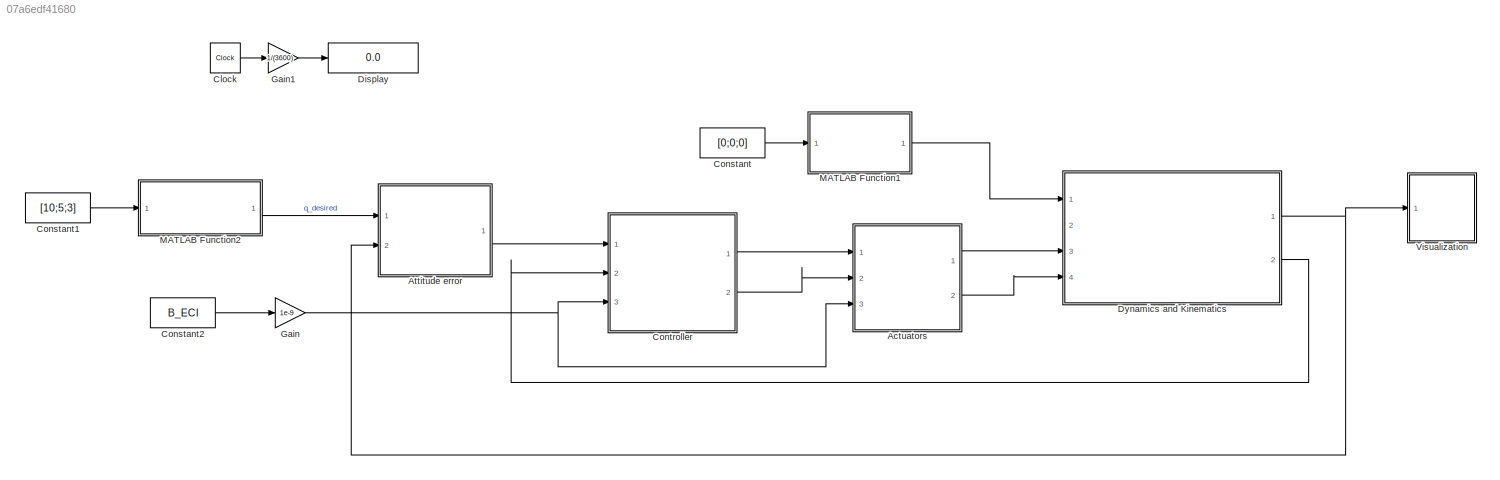
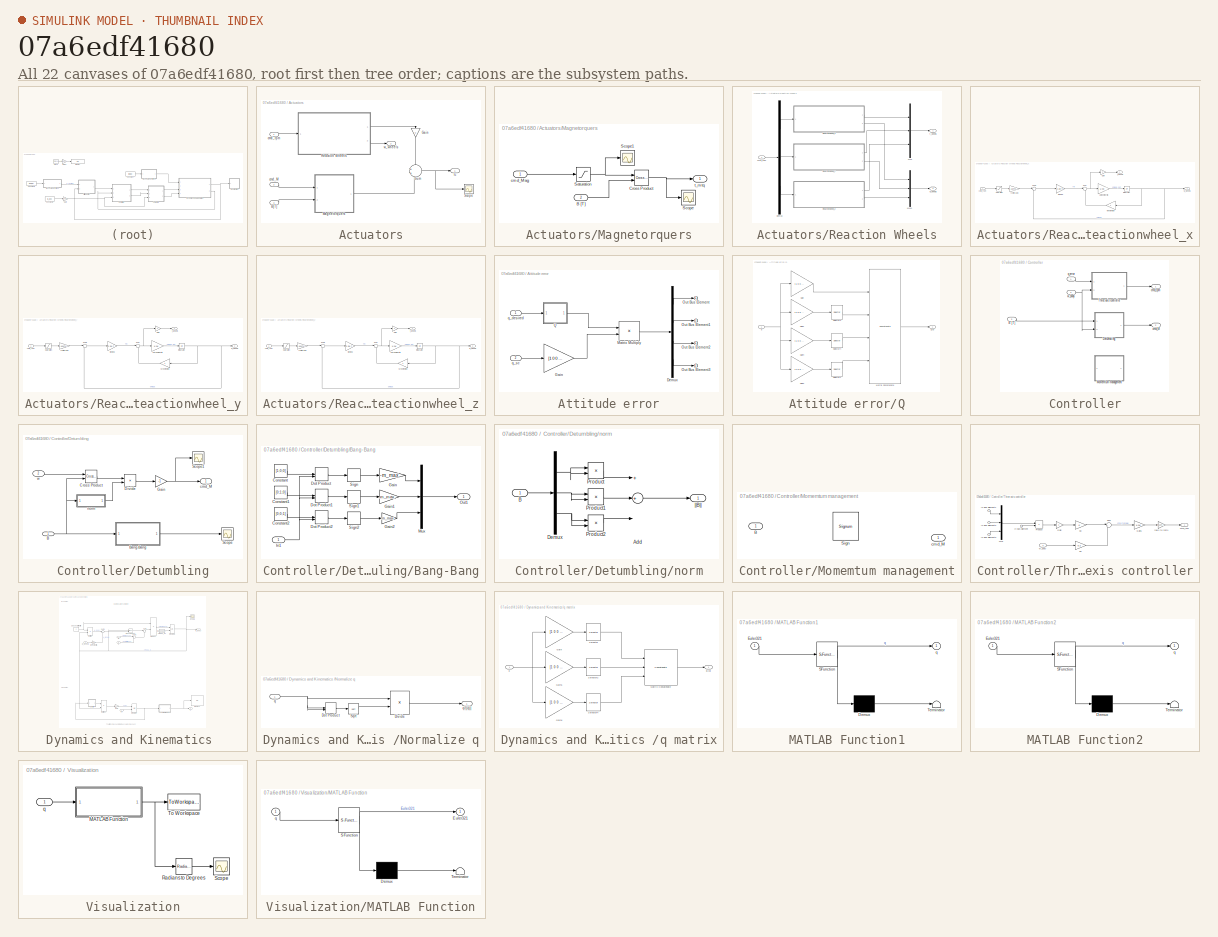
[diagram: thumbnail index - all 22 canvases of the model, root first then tree order]
MODEL slx_07a6edf41680
KIND model
CONFIG AbsTol = auto
CONFIG EnableMultiTasking = off
CONFIG FixedStep = auto
CONFIG MaxStep = auto
CONFIG MinStep = auto
CONFIG RelTol = 1e-3
CONFIG SampleTimeConstraint = Unconstrained
CONFIG Solver = VariableStepAuto
CONFIG SolverName = VariableStepAuto
CONFIG StartTime = 0.0
CONFIG StopTime = 50000
BLOCK [SubSystem] Actuators
  Ports = [3, 2]
  RequestExecContextInheritance = off
BLOCK [Inport] Actuators/B[T]
  IconDisplay = Port number
  Port = 3
BLOCK [Gain] Actuators/Gain
  Gain = 0
  OutDataTypeStr = Inherit: Inherit via internal rule
  ParamDataTypeStr = Inherit: Inherit via internal rule
  SaturateOnIntegerOverflow = off
BLOCK [SubSystem] Actuators/Magnetorquers
  Ports = [2, 1]
  RequestExecContextInheritance = off
BLOCK [Inport] Actuators/Magnetorquers/B [T]
  IconDisplay = Port number
  Port = 2
BLOCK [Reference] Actuators/Magnetorquers/Cross Product  REF=vrlib/Utilities/Cross Product
  Ports = [2, 1]
  SourceBlock = vrlib/Utilities/Cross Product
  SourceProductBaseCode = SL
  SourceProductName = Simulink
  SourceType = Cross Product
BLOCK [Saturate] Actuators/Magnetorquers/Saturation
  InputPortMap = u0
  LowerLimit = -m_max-10
  Ports = [1, 1]
  UpperLimit = m_max+10
BLOCK [Scope] Actuators/Magnetorquers/Scope
  Floating = off
  NumInputPorts = 1
  Ports = [1]
  ScopeSpecificationString = Simulink.scopes.TimeScopeBlockCfg('CurrentConfiguration', extmgr.ConfigurationSet(extmgr.Configuration('Core','General UI',true),extmgr.Configuration('Core','Source UI',true),extmgr.Configuration('Sources','WiredSimulink',true,'DataLoggingVariableName','ScopeData1'),extmgr.Configuration('Visuals','Time Domain',true,'SerializedDisplays',{struct('MinYLimReal','-0.00009','MaxYLimReal','0.00063','YLab...<+1454ch>
BLOCK [Scope] Actuators/Magnetorquers/Scope1
  Floating = off
  NumInputPorts = 1
  Ports = [1]
  ScopeSpecificationString = Simulink.scopes.TimeScopeBlockCfg('CurrentConfiguration', extmgr.ConfigurationSet(extmgr.Configuration('Core','General UI',true),extmgr.Configuration('Core','Source UI',true),extmgr.Configuration('Sources','WiredSimulink',true,'DataLoggingVariableName','ScopeData3'),extmgr.Configuration('Visuals','Time Domain',true,'SerializedDisplays',{struct('MinYLimReal','-12.8','MaxYLimReal','12.8','YLabelReal...<+1427ch>
BLOCK [Inport] Actuators/Magnetorquers/cmd_Mag
  IconDisplay = Port number
BLOCK [Outport] Actuators/Magnetorquers/t_mtq
  IconDisplay = Port number
BLOCK [SubSystem] Actuators/Reaction Wheels
  Ports = [1, 2]
  RequestExecContextInheritance = off
BLOCK [Demux] Actuators/Reaction Wheels/Demux
  DisplayOption = bar
  Outputs = 3
  Ports = [1, 3]
BLOCK [Mux] Actuators/Reaction Wheels/Mux
  DisplayOption = bar
  Inputs = 3
  Ports = [3, 1]
BLOCK [Mux] Actuators/Reaction Wheels/Mux1
  DisplayOption = bar
  Inputs = 3
  Ports = [3, 1]
BLOCK [SubSystem] Actuators/Reaction Wheels/Reactionwheel_x
  Ports = [1, 2]
  RequestExecContextInheritance = off
BLOCK [Gain] Actuators/Reaction Wheels/Reactionwheel_x/1//Wheel inertia
  Gain = 1/Jw
  OutDataTypeStr = Inherit: Inherit via internal rule
  ParamDataTypeStr = Inherit: Inherit via internal rule
  SaturateOnIntegerOverflow = off
BLOCK [Gain] Actuators/Reaction Wheels/Reactionwheel_x/Gain
  Gain = -1
  OutDataTypeStr = Inherit: Inherit via internal rule
  ParamDataTypeStr = Inherit: Inherit via internal rule
  SaturateOnIntegerOverflow = off
BLOCK [Integrator] Actuators/Reaction Wheels/Reactionwheel_x/Integrator
  Ports = [1, 1]
BLOCK [Saturate] Actuators/Reaction Wheels/Reactionwheel_x/Saturation
  InputPortMap = u0
  LowerLimit = -8000
  Ports = [1, 1]
  UpperLimit = 8000
BLOCK [Sum] Actuators/Reaction Wheels/Reactionwheel_x/Sum
  IconShape = round
  InputSameDT = off
  Inputs = |+-
  OutDataTypeStr = Inherit: Inherit via internal rule
  Ports = [2, 1]
  SaturateOnIntegerOverflow = off
BLOCK [Sum] Actuators/Reaction Wheels/Reactionwheel_x/Sum1
  IconShape = round
  InputSameDT = off
  Inputs = |+-
  OutDataTypeStr = Inherit: Inherit via internal rule
  Ports = [2, 1]
  SaturateOnIntegerOverflow = off
BLOCK [Gain] Actuators/Reaction Wheels/Reactionwheel_x/Wheel friction
  Gain = f
  OutDataTypeStr = Inherit: Inherit via internal rule
  ParamDataTypeStr = Inherit: Inherit via internal rule
  SaturateOnIntegerOverflow = off
BLOCK [Inport] Actuators/Reaction Wheels/Reactionwheel_x/cmd_rpm
  IconDisplay = Port number
BLOCK [Gain] Actuators/Reaction Wheels/Reactionwheel_x/rpm to rad//s
  Gain = 0.104719755
  OutDataTypeStr = Inherit: Inherit via internal rule
  ParamDataTypeStr = Inherit: Inherit via internal rule
  SaturateOnIntegerOverflow = off
BLOCK [Outport] Actuators/Reaction Wheels/Reactionwheel_x/t_wheels
  IconDisplay = Port number
BLOCK [Outport] Actuators/Reaction Wheels/Reactionwheel_x/w_wheels
  IconDisplay = Port number
  Port = 2
BLOCK [Gain] Actuators/Reaction Wheels/Reactionwheel_x/winding
  Gain = 2.2e-7
  OutDataTypeStr = Inherit: Inherit via internal rule
  ParamDataTypeStr = Inherit: Inherit via internal rule
  SaturateOnIntegerOverflow = off
BLOCK [SubSystem] Actuators/Reaction Wheels/Reactionwheel_y
  Ports = [1, 2]
  RequestExecContextInheritance = off
BLOCK [Gain] Actuators/Reaction Wheels/Reactionwheel_y/1//Wheel inertia
  Gain = 1/Jw
  OutDataTypeStr = Inherit: Inherit via internal rule
  ParamDataTypeStr = Inherit: Inherit via internal rule
  SaturateOnIntegerOverflow = off
BLOCK [Gain] Actuators/Reaction Wheels/Reactionwheel_y/Gain
  Gain = -1
  OutDataTypeStr = Inherit: Inherit via internal rule
  ParamDataTypeStr = Inherit: Inherit via internal rule
  SaturateOnIntegerOverflow = off
BLOCK [Integrator] Actuators/Reaction Wheels/Reactionwheel_y/Integrator
  Ports = [1, 1]
BLOCK [Saturate] Actuators/Reaction Wheels/Reactionwheel_y/Saturation
  InputPortMap = u0
  LowerLimit = -8000
  Ports = [1, 1]
  UpperLimit = 8000
BLOCK [Sum] Actuators/Reaction Wheels/Reactionwheel_y/Sum
  IconShape = round
  InputSameDT = off
  Inputs = |+-
  OutDataTypeStr = Inherit: Inherit via internal rule
  Ports = [2, 1]
  SaturateOnIntegerOverflow = off
BLOCK [Sum] Actuators/Reaction Wheels/Reactionwheel_y/Sum1
  IconShape = round
  InputSameDT = off
  Inputs = |+-
  OutDataTypeStr = Inherit: Inherit via internal rule
  Ports = [2, 1]
  SaturateOnIntegerOverflow = off
BLOCK [Gain] Actuators/Reaction Wheels/Reactionwheel_y/Wheel friction
  Gain = f
  OutDataTypeStr = Inherit: Inherit via internal rule
  ParamDataTypeStr = Inherit: Inherit via internal rule
  SaturateOnIntegerOverflow = off
BLOCK [Inport] Actuators/Reaction Wheels/Reactionwheel_y/cmd_rpm
  IconDisplay = Port number
BLOCK [Gain] Actuators/Reaction Wheels/Reactionwheel_y/rpm to rad//s
  Gain = 0.104719755
  OutDataTypeStr = Inherit: Inherit via internal rule
  ParamDataTypeStr = Inherit: Inherit via internal rule
  SaturateOnIntegerOverflow = off
BLOCK [Outport] Actuators/Reaction Wheels/Reactionwheel_y/t_wheels
  IconDisplay = Port number
BLOCK [Outport] Actuators/Reaction Wheels/Reactionwheel_y/w_wheels
  IconDisplay = Port number
  Port = 2
BLOCK [Gain] Actuators/Reaction Wheels/Reactionwheel_y/winding
  Gain = 2.2e-7
  OutDataTypeStr = Inherit: Inherit via internal rule
  ParamDataTypeStr = Inherit: Inherit via internal rule
  SaturateOnIntegerOverflow = off
BLOCK [SubSystem] Actuators/Reaction Wheels/Reactionwheel_z
  Ports = [1, 2]
  RequestExecContextInheritance = off
BLOCK [Gain] Actuators/Reaction Wheels/Reactionwheel_z/1//Wheel inertia
  Gain = 1/Jw
  OutDataTypeStr = Inherit: Inherit via internal rule
  ParamDataTypeStr = Inherit: Inherit via internal rule
  SaturateOnIntegerOverflow = off
BLOCK [Gain] Actuators/Reaction Wheels/Reactionwheel_z/Gain
  Gain = -1
  OutDataTypeStr = Inherit: Inherit via internal rule
  ParamDataTypeStr = Inherit: Inherit via internal rule
  SaturateOnIntegerOverflow = off
BLOCK [Integrator] Actuators/Reaction Wheels/Reactionwheel_z/Integrator
  Ports = [1, 1]
BLOCK [Saturate] Actuators/Reaction Wheels/Reactionwheel_z/Saturation
  InputPortMap = u0
  LowerLimit = -8000
  Ports = [1, 1]
  UpperLimit = 8000
BLOCK [Sum] Actuators/Reaction Wheels/Reactionwheel_z/Sum
  IconShape = round
  InputSameDT = off
  Inputs = |+-
  OutDataTypeStr = Inherit: Inherit via internal rule
  Ports = [2, 1]
  SaturateOnIntegerOverflow = off
BLOCK [Sum] Actuators/Reaction Wheels/Reactionwheel_z/Sum1
  IconShape = round
  InputSameDT = off
  Inputs = |+-
  OutDataTypeStr = Inherit: Inherit via internal rule
  Ports = [2, 1]
  SaturateOnIntegerOverflow = off
BLOCK [Gain] Actuators/Reaction Wheels/Reactionwheel_z/Wheel friction
  Gain = f
  OutDataTypeStr = Inherit: Inherit via internal rule
  ParamDataTypeStr = Inherit: Inherit via internal rule
  SaturateOnIntegerOverflow = off
BLOCK [Inport] Actuators/Reaction Wheels/Reactionwheel_z/cmd_rpm
  IconDisplay = Port number
BLOCK [Gain] Actuators/Reaction Wheels/Reactionwheel_z/rpm to rad//s
  Gain = 0.104719755
  OutDataTypeStr = Inherit: Inherit via internal rule
  ParamDataTypeStr = Inherit: Inherit via internal rule
  SaturateOnIntegerOverflow = off
BLOCK [Outport] Actuators/Reaction Wheels/Reactionwheel_z/t_wheels
  IconDisplay = Port number
BLOCK [Outport] Actuators/Reaction Wheels/Reactionwheel_z/w_wheels
  IconDisplay = Port number
  Port = 2
BLOCK [Gain] Actuators/Reaction Wheels/Reactionwheel_z/winding
  Gain = 2.2e-7
  OutDataTypeStr = Inherit: Inherit via internal rule
  ParamDataTypeStr = Inherit: Inherit via internal rule
  SaturateOnIntegerOverflow = off
BLOCK [Inport] Actuators/Reaction Wheels/cmd_rpm
  IconDisplay = Port number
BLOCK [Outport] Actuators/Reaction Wheels/t_wheels
  IconDisplay = Port number
BLOCK [Outport] Actuators/Reaction Wheels/w_wheels
  IconDisplay = Port number
  Port = 2
BLOCK [Scope] Actuators/Scope
  Floating = off
  NumInputPorts = 1
  Ports = [1]
  ScopeSpecificationString = Simulink.scopes.TimeScopeBlockCfg('CurrentConfiguration', extmgr.ConfigurationSet(extmgr.Configuration('Core','General UI',true),extmgr.Configuration('Core','Source UI',true),extmgr.Configuration('Sources','WiredSimulink',true,'DataLoggingVariableName','ScopeData2'),extmgr.Configuration('Visuals','Time Domain',true,'SerializedDisplays',{struct('MinYLimReal','-0.00009','MaxYLimReal','0.00063','YLab...<+1435ch>
BLOCK [Sum] Actuators/Sum
  IconShape = round
  InputSameDT = off
  OutDataTypeStr = Inherit: Inherit via internal rule
  Ports = [2, 1]
  SaturateOnIntegerOverflow = off
BLOCK [Inport] Actuators/cmd_M
  IconDisplay = Port number
  Port = 2
BLOCK [Inport] Actuators/cmd_rpm
  IconDisplay = Port number
BLOCK [Outport] Actuators/tc
  IconDisplay = Port number
  VectorParamsAs1DForOutWhenUnconnected = on
BLOCK [Outport] Actuators/w_wheels
  IconDisplay = Port number
  Port = 2
  VectorParamsAs1DForOutWhenUnconnected = on
BLOCK [SubSystem] Attitude error
  Ports = [2, 1]
  RequestExecContextInheritance = off
BLOCK [Demux] Attitude error/Demux
  DisplayOption = bar
  Ports = [1, 4]
BLOCK [Gain] Attitude error/Gain
  Gain = [1 0 0 0;0 -1 0 0;0 0 -1 0;0 0 0 -1]
  Multiplication = Matrix(K*u)
  OutDataTypeStr = Inherit: Inherit via internal rule
  ParamDataTypeStr = Inherit: Inherit via internal rule
  SaturateOnIntegerOverflow = off
BLOCK [Product] Attitude error/Matrix Multiply
  InputSameDT = off
  Multiplication = Matrix(*)
  OutDataTypeStr = Inherit: Inherit via internal rule
  Ports = [2, 1]
  RndMeth = Floor
  SaturateOnIntegerOverflow = off
BLOCK [Outport] Attitude error/Out Bus Element
  IconDisplay = Port number
BLOCK [Outport] Attitude error/Out Bus Element1
  IconDisplay = Port number
BLOCK [Outport] Attitude error/Out Bus Element2
  IconDisplay = Port number
BLOCK [Outport] Attitude error/Out Bus Element3
  IconDisplay = Port number
BLOCK [SubSystem] Attitude error/Q
  Ports = [1, 1]
  RequestExecContextInheritance = off
BLOCK [Gain] Attitude error/Q/Gain
  Gain = [1 0 0 0;0 1 0 0;0 0 1 0;0 0 0 1]
  Multiplication = Matrix(K*u)
  OutDataTypeStr = Inherit: Inherit via internal rule
  ParamDataTypeStr = Inherit: Inherit via internal rule
  SaturateOnIntegerOverflow = off
BLOCK [Gain] Attitude error/Q/Gain1
  Gain = [1 0 0 0;0 -1 0 0;0 0 -1 0;0 0 0 1]
  Multiplication = Matrix(K*u)
  OutDataTypeStr = Inherit: Inherit via internal rule
  ParamDataTypeStr = Inherit: Inherit via internal rule
  SaturateOnIntegerOverflow = off
BLOCK [Gain] Attitude error/Q/Gain2
  Gain = [1 0 0 0;0 -1 0 0;0 0 1 0;0 0 0 -1]
  Multiplication = Matrix(K*u)
  OutDataTypeStr = Inherit: Inherit via internal rule
  ParamDataTypeStr = Inherit: Inherit via internal rule
  SaturateOnIntegerOverflow = off
BLOCK [Gain] Attitude error/Q/Gain4
  Gain = [1 0 0 0;0 1 0 0;0 0 -1 0;0 0 0 -1]
  Multiplication = Matrix(K*u)
  OutDataTypeStr = Inherit: Inherit via internal rule
  ParamDataTypeStr = Inherit: Inherit via internal rule
  SaturateOnIntegerOverflow = off
BLOCK [Concatenate] Attitude error/Q/Matrix Concatenate
  ConcatenateDimension = 2
  Mode = Multidimensional array
  NumInputs = 4
  Ports = [4, 1]
BLOCK [Outport] Attitude error/Q/Q(q)
  IconDisplay = Port number
BLOCK [Selector] Attitude error/Q/Selector1
  IndexOptions = Index vector (dialog)
  Indices = [4 3 2 1]
  InputPortWidth = 4
  OutputSizes = 1
  Ports = [1, 1]
BLOCK [Selector] Attitude error/Q/Selector2
  IndexOptions = Index vector (dialog)
  Indices = [2 1 4 3]
  InputPortWidth = 4
  OutputSizes = 1
  Ports = [1, 1]
BLOCK [Selector] Attitude error/Q/Selector4
  IndexOptions = Index vector (dialog)
  Indices = [3 4 1 2]
  InputPortWidth = 4
  OutputSizes = 1
  Ports = [1, 1]
BLOCK [Inport] Attitude error/Q/q
  IconDisplay = Port number
BLOCK [Inport] Attitude error/q_desired
  IconDisplay = Port number
BLOCK [Inport] Attitude error/q_sc
  IconDisplay = Port number
  Port = 2
BLOCK [Clock] Clock
BLOCK [Constant] Constant
  Value = [0;0;0]
BLOCK [Constant] Constant1
  Value = [10;5;3]
BLOCK [Constant] Constant2
  Value = B_ECI
BLOCK [SubSystem] Controller
  Ports = [3, 2]
  RequestExecContextInheritance = off
BLOCK [Inport] Controller/B [T]
  IconDisplay = Port number
  Port = 3
BLOCK [SubSystem] Controller/Detumbling
  Ports = [2, 1]
  RequestExecContextInheritance = off
BLOCK [Inport] Controller/Detumbling/B
  IconDisplay = Port number
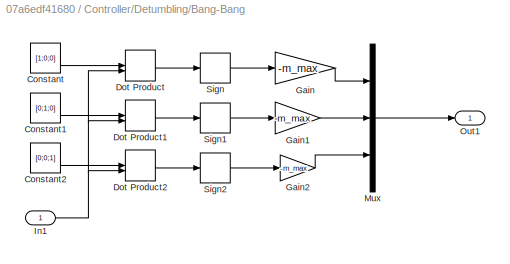
BLOCK [SubSystem] Controller/Detumbling/Bang-Bang
  Ports = [1, 1]
  RequestExecContextInheritance = off
BLOCK [Constant] Controller/Detumbling/Bang-Bang/Constant
  Value = [1;0;0]
BLOCK [Constant] Controller/Detumbling/Bang-Bang/Constant1
  Value = [0;1;0]
BLOCK [Constant] Controller/Detumbling/Bang-Bang/Constant2
  Value = [0;0;1]
BLOCK [DotProduct] Controller/Detumbling/Bang-Bang/Dot Product
  OutDataTypeStr = Inherit: Inherit via internal rule
BLOCK [DotProduct] Controller/Detumbling/Bang-Bang/Dot Product1
  OutDataTypeStr = Inherit: Inherit via internal rule
BLOCK [DotProduct] Controller/Detumbling/Bang-Bang/Dot Product2
  OutDataTypeStr = Inherit: Inherit via internal rule
BLOCK [Gain] Controller/Detumbling/Bang-Bang/Gain
  Gain = -m_max
  OutDataTypeStr = Inherit: Inherit via internal rule
  ParamDataTypeStr = Inherit: Inherit via internal rule
  SaturateOnIntegerOverflow = off
BLOCK [Gain] Controller/Detumbling/Bang-Bang/Gain1
  Gain = -m_max
  OutDataTypeStr = Inherit: Inherit via internal rule
  ParamDataTypeStr = Inherit: Inherit via internal rule
  SaturateOnIntegerOverflow = off
BLOCK [Gain] Controller/Detumbling/Bang-Bang/Gain2
  Gain = -m_max
  OutDataTypeStr = Inherit: Inherit via internal rule
  ParamDataTypeStr = Inherit: Inherit via internal rule
  SaturateOnIntegerOverflow = off
BLOCK [Inport] Controller/Detumbling/Bang-Bang/In1
  IconDisplay = Port number
BLOCK [Mux] Controller/Detumbling/Bang-Bang/Mux
  DisplayOption = bar
  Inputs = 3
  Ports = [3, 1]
BLOCK [Outport] Controller/Detumbling/Bang-Bang/Out1
  IconDisplay = Port number
BLOCK [Signum] Controller/Detumbling/Bang-Bang/Sign
BLOCK [Signum] Controller/Detumbling/Bang-Bang/Sign1
BLOCK [Signum] Controller/Detumbling/Bang-Bang/Sign2
BLOCK [Reference] Controller/Detumbling/Cross Product  REF=vrlib/Utilities/Cross Product
  Ports = [2, 1]
  SourceBlock = vrlib/Utilities/Cross Product
  SourceProductBaseCode = SL
  SourceProductName = Simulink
  SourceType = Cross Product
BLOCK [Product] Controller/Detumbling/Divide
  InputSameDT = off
  Inputs = */
  OutDataTypeStr = Inherit: Inherit via internal rule
  Ports = [2, 1]
  RndMeth = Floor
  SaturateOnIntegerOverflow = off
BLOCK [Gain] Controller/Detumbling/Gain
  Gain = -1
  OutDataTypeStr = Inherit: Inherit via internal rule
  ParamDataTypeStr = Inherit: Inherit via internal rule
  SaturateOnIntegerOverflow = off
BLOCK [Scope] Controller/Detumbling/Scope
  Floating = off
  NumInputPorts = 1
  Ports = [1]
  ScopeSpecificationString = Simulink.scopes.TimeScopeBlockCfg('CurrentConfiguration', extmgr.ConfigurationSet(extmgr.Configuration('Core','General UI',true),extmgr.Configuration('Core','Source UI',true),extmgr.Configuration('Sources','WiredSimulink',true,'DataLoggingVariableName','ScopeData1'),extmgr.Configuration('Visuals','Time Domain',true,'SerializedDisplays',{struct('MinYLimReal','-0.3','MaxYLimReal','0.3','YLabelReal',...<+1410ch>
BLOCK [Scope] Controller/Detumbling/Scope1
  Floating = off
  NumInputPorts = 1
  Ports = [1]
  ScopeSpecificationString = Simulink.scopes.TimeScopeBlockCfg('CurrentConfiguration', extmgr.ConfigurationSet(extmgr.Configuration('Core','General UI',true),extmgr.Configuration('Core','Source UI',true),extmgr.Configuration('Sources','WiredSimulink',true,'DataLoggingVariableName','ScopeData2'),extmgr.Configuration('Visuals','Time Domain',true,'SerializedDisplays',{struct('MinYLimReal','-25.221','MaxYLimReal','42.72408','YLab...<+1440ch>
BLOCK [Outport] Controller/Detumbling/cmd_M
  IconDisplay = Port number
BLOCK [SubSystem] Controller/Detumbling/norm
  Ports = [1, 1]
  RequestExecContextInheritance = off
BLOCK [Sum] Controller/Detumbling/norm/Add
  InputSameDT = off
  Inputs = 3
  OutDataTypeStr = Inherit: Inherit via internal rule
  Ports = [3, 1]
  SaturateOnIntegerOverflow = off
BLOCK [Inport] Controller/Detumbling/norm/B
  IconDisplay = Port number
BLOCK [Demux] Controller/Detumbling/norm/Demux
  DisplayOption = bar
  Outputs = 3
  Ports = [1, 3]
BLOCK [Product] Controller/Detumbling/norm/Product
  InputSameDT = off
  OutDataTypeStr = Inherit: Inherit via internal rule
  Ports = [2, 1]
  RndMeth = Floor
  SaturateOnIntegerOverflow = off
BLOCK [Product] Controller/Detumbling/norm/Product1
  InputSameDT = off
  OutDataTypeStr = Inherit: Inherit via internal rule
  Ports = [2, 1]
  RndMeth = Floor
  SaturateOnIntegerOverflow = off
BLOCK [Product] Controller/Detumbling/norm/Product2
  InputSameDT = off
  OutDataTypeStr = Inherit: Inherit via internal rule
  Ports = [2, 1]
  RndMeth = Floor
  SaturateOnIntegerOverflow = off
BLOCK [Outport] Controller/Detumbling/norm/||B||
  IconDisplay = Port number
BLOCK [Inport] Controller/Detumbling/w
  IconDisplay = Port number
  Port = 2
BLOCK [SubSystem] Controller/Momemtum management
  Ports = [1, 1]
  RequestExecContextInheritance = off
BLOCK [Inport] Controller/Momemtum management/B
  IconDisplay = Port number
BLOCK [Signum] Controller/Momemtum management/Sign
BLOCK [Outport] Controller/Momemtum management/cmd_M
  IconDisplay = Port number
BLOCK [SubSystem] Controller/Three axis controller
  Ports = [2, 1]
  RequestExecContextInheritance = off
BLOCK [Gain] Controller/Three axis controller/Gain
  Gain = 2
  OutDataTypeStr = Inherit: Inherit via internal rule
  ParamDataTypeStr = Inherit: Inherit via internal rule
  SaturateOnIntegerOverflow = off
BLOCK [Gain] Controller/Three axis controller/Gain1
  Gain = 1/Jw
  OutDataTypeStr = Inherit: Inherit via internal rule
  ParamDataTypeStr = Inherit: Inherit via internal rule
  SaturateOnIntegerOverflow = off
BLOCK [Inport] Controller/Three axis controller/In Bus Element
  IconDisplay = Port number
BLOCK [Inport] Controller/Three axis controller/In Bus Element1
  IconDisplay = Port number
BLOCK [Inport] Controller/Three axis controller/In Bus Element2
  IconDisplay = Port number
BLOCK [Inport] Controller/Three axis controller/In Bus Element3
  IconDisplay = Port number
BLOCK [Gain] Controller/Three axis controller/Kd
  Gain = 0.2
  OutDataTypeStr = Inherit: Inherit via internal rule
  ParamDataTypeStr = Inherit: Inherit via internal rule
  SaturateOnIntegerOverflow = off
BLOCK [Gain] Controller/Three axis controller/Kp
  OutDataTypeStr = Inherit: Inherit via internal rule
  ParamDataTypeStr = Inherit: Inherit via internal rule
  SaturateOnIntegerOverflow = off
BLOCK [Mux] Controller/Three axis controller/Mux
  DisplayOption = bar
  Inputs = 3
  Ports = [3, 1]
BLOCK [Product] Controller/Three axis controller/Product
  InputSameDT = off
  OutDataTypeStr = Inherit: Inherit via internal rule
  Ports = [2, 1]
  RndMeth = Floor
  SaturateOnIntegerOverflow = off
BLOCK [Sum] Controller/Three axis controller/Sum
  IconShape = round
  InputSameDT = off
  Inputs = |++
  OutDataTypeStr = Inherit: Inherit via internal rule
  Ports = [2, 1]
  SaturateOnIntegerOverflow = off
BLOCK [Outport] Controller/Three axis controller/cmd_rpm
  IconDisplay = Port number
BLOCK [Gain] Controller/Three axis controller/rad//s to rpm1
  Gain = 1/0.104719755
  OutDataTypeStr = Inherit: Inherit via internal rule
  ParamDataTypeStr = Inherit: Inherit via internal rule
  SaturateOnIntegerOverflow = off
BLOCK [Inport] Controller/Three axis controller/w_body
  IconDisplay = Port number
  Port = 2
BLOCK [Outport] Controller/cmd_M
  IconDisplay = Port number
  Port = 2
BLOCK [Outport] Controller/cmd_rpm 
  IconDisplay = Port number
BLOCK [Inport] Controller/q_error
  IconDisplay = Port number
BLOCK [Inport] Controller/w_body
  IconDisplay = Port number
  Port = 2
BLOCK [Display] Display
  Decimation = 1
  Ports = [1]
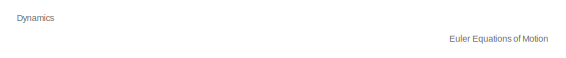
[diagram: Dynamics and Kinematics  - part 1/2, top left region]
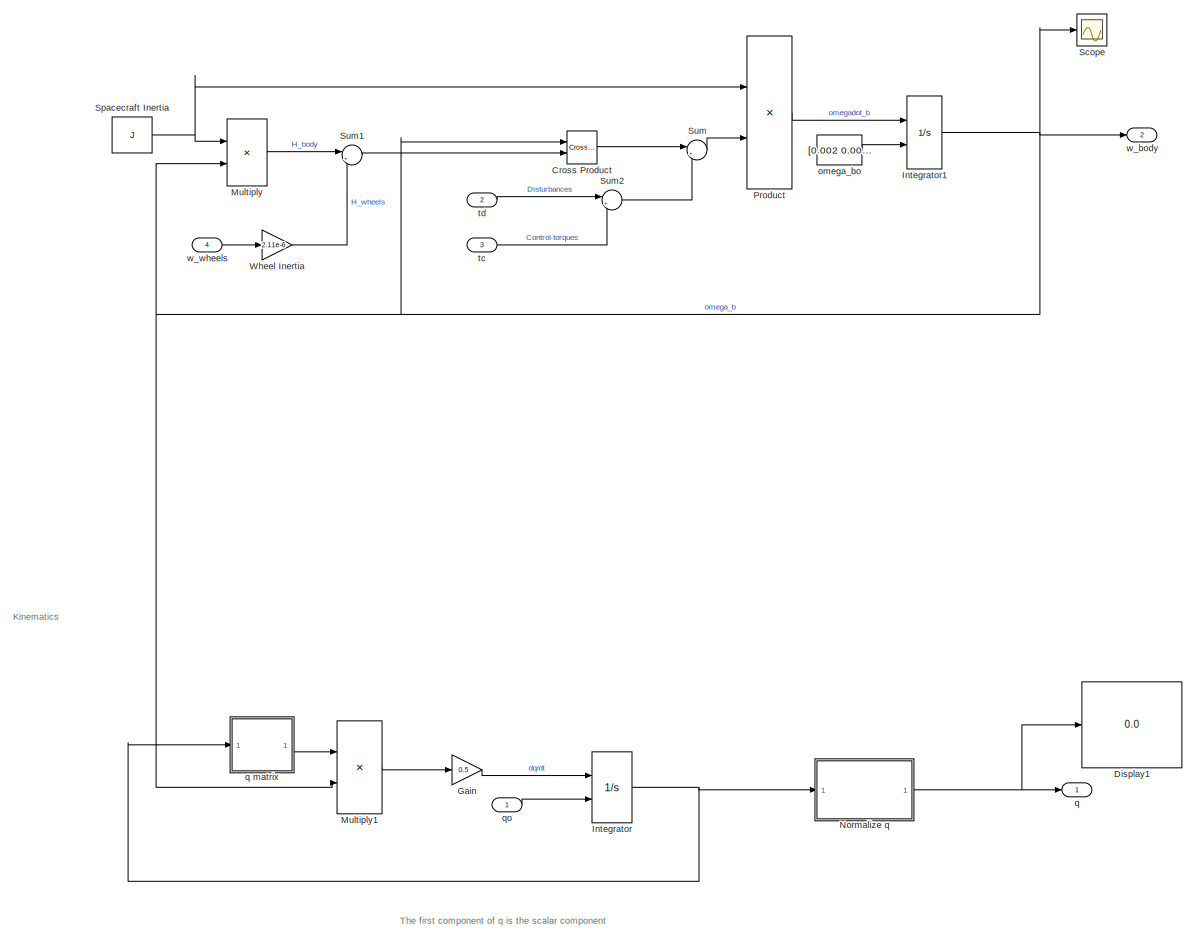
[diagram: Dynamics and Kinematics  - part 2/2, most of the canvas]
BLOCK [SubSystem] Dynamics and Kinematics 
  Ports = [4, 2]
  RequestExecContextInheritance = off
BLOCK [Reference] Dynamics and Kinematics /Cross Product  REF=vrlib/Utilities/Cross Product
  Ports = [2, 1]
  SourceBlock = vrlib/Utilities/Cross Product
  SourceProductBaseCode = SL
  SourceProductName = Simulink
  SourceType = Cross Product
BLOCK [Display] Dynamics and Kinematics /Display1
  Decimation = 1
  Ports = [1]
BLOCK [Gain] Dynamics and Kinematics /Gain
  Gain = 0.5
  OutDataTypeStr = Inherit: Inherit via internal rule
  ParamDataTypeStr = Inherit: Inherit via internal rule
  SaturateOnIntegerOverflow = off
BLOCK [Integrator] Dynamics and Kinematics /Integrator
  InitialConditionSource = external
  Ports = [2, 1]
BLOCK [Integrator] Dynamics and Kinematics /Integrator1
  InitialConditionSource = external
  Ports = [2, 1]
BLOCK [Product] Dynamics and Kinematics /Multiply
  InputSameDT = off
  Multiplication = Matrix(*)
  OutDataTypeStr = Inherit: Inherit via internal rule
  Ports = [2, 1]
  RndMeth = Floor
  SaturateOnIntegerOverflow = off
BLOCK [Product] Dynamics and Kinematics /Multiply1
  InputSameDT = off
  Multiplication = Matrix(*)
  OutDataTypeStr = Inherit: Inherit via internal rule
  Ports = [2, 1]
  RndMeth = Floor
  SaturateOnIntegerOverflow = off
BLOCK [SubSystem] Dynamics and Kinematics /Normalize q
  Ports = [1, 1]
  RequestExecContextInheritance = off
BLOCK [Product] Dynamics and Kinematics /Normalize q/Divide
  InputSameDT = off
  Inputs = */
  OutDataTypeStr = Inherit: Inherit via internal rule
  Ports = [2, 1]
  RndMeth = Floor
  SaturateOnIntegerOverflow = off
BLOCK [DotProduct] Dynamics and Kinematics /Normalize q/Dot Product
  OutDataTypeStr = Inherit: Inherit via internal rule
BLOCK [Sqrt] Dynamics and Kinematics /Normalize q/Sqrt
BLOCK [Inport] Dynamics and Kinematics /Normalize q/q
  IconDisplay = Port number
BLOCK [Outport] Dynamics and Kinematics /Normalize q/q//||q||
  IconDisplay = Port number
BLOCK [Product] Dynamics and Kinematics /Product
  InputSameDT = off
  Inputs = /*
  Multiplication = Matrix(*)
  OutDataTypeStr = Inherit: Inherit via internal rule
  Ports = [2, 1]
  RndMeth = Floor
  SaturateOnIntegerOverflow = off
BLOCK [Scope] Dynamics and Kinematics /Scope
  Floating = off
  NumInputPorts = 1
  Ports = [1]
  ScopeSpecificationString = Simulink.scopes.TimeScopeBlockCfg('CurrentConfiguration', extmgr.ConfigurationSet(extmgr.Configuration('Core','General UI',true),extmgr.Configuration('Core','Source UI',true),extmgr.Configuration('Sources','WiredSimulink',true,'DataLoggingVariableName','ScopeData1'),extmgr.Configuration('Visuals','Time Domain',true,'SerializedDisplays',{struct('MinYLimReal','-0.00025','MaxYLimReal','0.00225','YLab...<+1447ch>
BLOCK [Constant] Dynamics and Kinematics /Spacecraft Inertia
  Value = J
BLOCK [Sum] Dynamics and Kinematics /Sum
  IconShape = round
  InputSameDT = off
  Inputs = |++
  OutDataTypeStr = Inherit: Inherit via internal rule
  Ports = [2, 1]
  SaturateOnIntegerOverflow = off
BLOCK [Sum] Dynamics and Kinematics /Sum1
  IconShape = round
  InputSameDT = off
  Inputs = |++
  OutDataTypeStr = Inherit: Inherit via internal rule
  Ports = [2, 1]
  SaturateOnIntegerOverflow = off
BLOCK [Sum] Dynamics and Kinematics /Sum2
  IconShape = round
  InputSameDT = off
  Inputs = |+-
  OutDataTypeStr = Inherit: Inherit via internal rule
  Ports = [2, 1]
  SaturateOnIntegerOverflow = off
BLOCK [Gain] Dynamics and Kinematics /Wheel Inertia
  Gain = 2.11e-6
  OutDataTypeStr = Inherit: Inherit via internal rule
  ParamDataTypeStr = Inherit: Inherit via internal rule
  SaturateOnIntegerOverflow = off
BLOCK [Constant] Dynamics and Kinematics /omega_bo
  Value = [0.002 0.001 0.0015]'
BLOCK [Outport] Dynamics and Kinematics /q
  IconDisplay = Port number
BLOCK [SubSystem] Dynamics and Kinematics /q matrix
  Ports = [1, 1]
  RequestExecContextInheritance = off
BLOCK [Outport] Dynamics and Kinematics /q matrix/B[q]
  IconDisplay = Port number
BLOCK [Gain] Dynamics and Kinematics /q matrix/Gain
  Gain = [1 0 0 0;0 -1 0 0;0 0 -1 0;0 0 0 1]
  Multiplication = Matrix(K*u)
  OutDataTypeStr = Inherit: Inherit via internal rule
  ParamDataTypeStr = Inherit: Inherit via internal rule
  SaturateOnIntegerOverflow = off
BLOCK [Gain] Dynamics and Kinematics /q matrix/Gain1
  Gain = [1 0 0 0;0 1 0 0;0 0 -1 0;0 0 0 -1]
  Multiplication = Matrix(K*u)
  OutDataTypeStr = Inherit: Inherit via internal rule
  ParamDataTypeStr = Inherit: Inherit via internal rule
  SaturateOnIntegerOverflow = off
BLOCK [Gain] Dynamics and Kinematics /q matrix/Gain4
  Gain = [1 0 0 0;0 -1 0 0;0 0 1 0;0 0 0 -1]
  Multiplication = Matrix(K*u)
  OutDataTypeStr = Inherit: Inherit via internal rule
  ParamDataTypeStr = Inherit: Inherit via internal rule
  SaturateOnIntegerOverflow = off
BLOCK [Concatenate] Dynamics and Kinematics /q matrix/Matrix Concatenate
  ConcatenateDimension = 2
  Mode = Multidimensional array
  NumInputs = 3
  Ports = [3, 1]
BLOCK [Selector] Dynamics and Kinematics /q matrix/Selector
  IndexOptions = Index vector (dialog)
  Indices = [2 1 4 3]
  InputPortWidth = 4
  OutputSizes = 1
  Ports = [1, 1]
BLOCK [Selector] Dynamics and Kinematics /q matrix/Selector2
  IndexOptions = Index vector (dialog)
  Indices = [3 4 1 2]
  InputPortWidth = 4
  OutputSizes = 1
  Ports = [1, 1]
BLOCK [Selector] Dynamics and Kinematics /q matrix/Selector4
  IndexOptions = Index vector (dialog)
  Indices = [4 3 2 1]
  InputPortWidth = 4
  OutputSizes = 1
  Ports = [1, 1]
BLOCK [Inport] Dynamics and Kinematics /q matrix/q
  IconDisplay = Port number
BLOCK [Inport] Dynamics and Kinematics /qo
  IconDisplay = Port number
BLOCK [Inport] Dynamics and Kinematics /tc
  IconDisplay = Port number
  Port = 3
BLOCK [Inport] Dynamics and Kinematics /td
  IconDisplay = Port number
  Port = 2
BLOCK [Outport] Dynamics and Kinematics /w_body
  IconDisplay = Port number
  Port = 2
BLOCK [Inport] Dynamics and Kinematics /w_wheels
  IconDisplay = Port number
  Port = 4
BLOCK [Gain] Gain
  Gain = 1e-9
  OutDataTypeStr = Inherit: Inherit via internal rule
  ParamDataTypeStr = Inherit: Inherit via internal rule
  SaturateOnIntegerOverflow = off
BLOCK [Gain] Gain1
  Gain = 1/(3600)
  OutDataTypeStr = Inherit: Inherit via internal rule
  ParamDataTypeStr = Inherit: Inherit via internal rule
  SaturateOnIntegerOverflow = off
BLOCK [SubSystem] MATLAB Function1
  ErrorFcn = Stateflow.Translate.translate
  PermitHierarchicalResolution = ExplicitOnly
  Ports = [1, 1]
  RequestExecContextInheritance = off
  SFBlockType = MATLAB Function
  TreatAsAtomicUnit = on
BLOCK [Demux] MATLAB Function1/ Demux 
  Outputs = 1
  Ports = [1, 1]
BLOCK [S-Function] MATLAB Function1/ SFunction 
  EnableBusSupport = on
  FunctionName = sf_sfun
  PortCounts = [1 2]
  Ports = [1, 2]
  SFcnIsStateOwnerBlock = off
  SFunctionDeploymentMode = off
  Tag = Stateflow S-Function TEST 1
BLOCK [Terminator] MATLAB Function1/ Terminator 
BLOCK [Inport] MATLAB Function1/Euler321
  IconDisplay = Port number
BLOCK [Outport] MATLAB Function1/q
  IconDisplay = Port number
BLOCK [SubSystem] MATLAB Function2
  ErrorFcn = Stateflow.Translate.translate
  PermitHierarchicalResolution = ExplicitOnly
  Ports = [1, 1]
  RequestExecContextInheritance = off
  SFBlockType = MATLAB Function
  TreatAsAtomicUnit = on
BLOCK [Demux] MATLAB Function2/ Demux 
  Outputs = 1
  Ports = [1, 1]
BLOCK [S-Function] MATLAB Function2/ SFunction 
  EnableBusSupport = on
  FunctionName = sf_sfun
  PortCounts = [1 2]
  Ports = [1, 2]
  SFcnIsStateOwnerBlock = off
  SFunctionDeploymentMode = off
  Tag = Stateflow S-Function TEST 3
BLOCK [Terminator] MATLAB Function2/ Terminator 
BLOCK [Inport] MATLAB Function2/Euler321
  IconDisplay = Port number
BLOCK [Outport] MATLAB Function2/q
  IconDisplay = Port number
BLOCK [SubSystem] Visualization
  Ports = [1]
  RequestExecContextInheritance = off
BLOCK [SubSystem] Visualization/MATLAB Function
  ErrorFcn = Stateflow.Translate.translate
  PermitHierarchicalResolution = ExplicitOnly
  Ports = [1, 1]
  RequestExecContextInheritance = off
  SFBlockType = MATLAB Function
  TreatAsAtomicUnit = on
BLOCK [Demux] Visualization/MATLAB Function/ Demux 
  Outputs = 1
  Ports = [1, 1]
BLOCK [S-Function] Visualization/MATLAB Function/ SFunction 
  EnableBusSupport = on
  FunctionName = sf_sfun
  PortCounts = [1 2]
  Ports = [1, 2]
  SFcnIsStateOwnerBlock = off
  SFunctionDeploymentMode = off
  Tag = Stateflow S-Function TEST 2
BLOCK [Terminator] Visualization/MATLAB Function/ Terminator 
BLOCK [Outport] Visualization/MATLAB Function/Euler321
  IconDisplay = Port number
BLOCK [Inport] Visualization/MATLAB Function/q
  IconDisplay = Port number
BLOCK [Reference] Visualization/Radians to Degrees  REF=simulink_extras/Transformations/Radians
to Degrees
  Ports = [1, 1]
  SourceBlock = simulink_extras/Transformations/Radians\nto Degrees
  SourceProductBaseCode = SL
  SourceProductName = Simulink
  SourceType = RadiansToDegrees
BLOCK [Scope] Visualization/Scope
  Floating = off
  NumInputPorts = 1
  Ports = [1]
  ScopeSpecificationString = Simulink.scopes.TimeScopeBlockCfg('CurrentConfiguration', extmgr.ConfigurationSet(extmgr.Configuration('Core','General UI',true),extmgr.Configuration('Core','Source UI',true),extmgr.Configuration('Sources','WiredSimulink',true,'DataLoggingVariableName','ScopeData1'),extmgr.Configuration('Visuals','Time Domain',true,'SerializedDisplays',{struct('MinYLimReal','-1.25153','MaxYLimReal','11.26379','YLa...<+1484ch>
BLOCK [ToWorkspace] Visualization/To Workspace
  FixptAsFi = on
  MaxDataPoints = inf
  Ports = [1]
  SampleTime = 0.05
  VariableName = euler
BLOCK [Inport] Visualization/q
  IconDisplay = Port number
ANNOTATION Dynamics and Kinematics : Euler Equations of Motion
ANNOTATION Dynamics and Kinematics : Dynamics
ANNOTATION Dynamics and Kinematics : Kinematics
ANNOTATION Dynamics and Kinematics : The first component of q is the scalar component
LINE Actuators/B[T]:1 -> Actuators/Magnetorquers:2
LINE Actuators/Gain:1 -> Actuators/Sum:1
LINE Actuators/Magnetorquers/B [T]:1 -> Actuators/Magnetorquers/Cross Product:2
NET Actuators/Magnetorquers/Cross Product:1 -> Actuators/Magnetorquers/Scope:1, Actuators/Magnetorquers/t_mtq:1
NET Actuators/Magnetorquers/Saturation:1 -> Actuators/Magnetorquers/Cross Product:1, Actuators/Magnetorquers/Scope1:1
LINE Actuators/Magnetorquers/cmd_Mag:1 -> Actuators/Magnetorquers/Saturation:1
LINE Actuators/Magnetorquers:1 -> Actuators/Sum:2
LINE Actuators/Reaction Wheels/Demux:1 -> Actuators/Reaction Wheels/Reactionwheel_x:1
LINE Actuators/Reaction Wheels/Demux:2 -> Actuators/Reaction Wheels/Reactionwheel_y:1
LINE Actuators/Reaction Wheels/Demux:3 -> Actuators/Reaction Wheels/Reactionwheel_z:1
LINE Actuators/Reaction Wheels/Mux1:1 -> Actuators/Reaction Wheels/w_wheels:1
LINE Actuators/Reaction Wheels/Mux:1 -> Actuators/Reaction Wheels/t_wheels:1
LINE Actuators/Reaction Wheels/Reactionwheel_x/1//Wheel inertia:1 -> Actuators/Reaction Wheels/Reactionwheel_x/Integrator:1
LINE Actuators/Reaction Wheels/Reactionwheel_x/Gain:1 -> Actuators/Reaction Wheels/Reactionwheel_x/t_wheels:1
NET Actuators/Reaction Wheels/Reactionwheel_x/Integrator:1 -> Actuators/Reaction Wheels/Reactionwheel_x/Sum1:2, Actuators/Reaction Wheels/Reactionwheel_x/Wheel friction:1, Actuators/Reaction Wheels/Reactionwheel_x/w_wheels:1
LINE Actuators/Reaction Wheels/Reactionwheel_x/Saturation:1 -> Actuators/Reaction Wheels/Reactionwheel_x/rpm to rad//s:1
LINE Actuators/Reaction Wheels/Reactionwheel_x/Sum1:1 -> Actuators/Reaction Wheels/Reactionwheel_x/winding:1
NET Actuators/Reaction Wheels/Reactionwheel_x/Sum:1 -> Actuators/Reaction Wheels/Reactionwheel_x/1//Wheel inertia:1, Actuators/Reaction Wheels/Reactionwheel_x/Gain:1
LINE Actuators/Reaction Wheels/Reactionwheel_x/Wheel friction:1 -> Actuators/Reaction Wheels/Reactionwheel_x/Sum:2
LINE Actuators/Reaction Wheels/Reactionwheel_x/cmd_rpm:1 -> Actuators/Reaction Wheels/Reactionwheel_x/Saturation:1
LINE Actuators/Reaction Wheels/Reactionwheel_x/rpm to rad//s:1 -> Actuators/Reaction Wheels/Reactionwheel_x/Sum1:1
LINE Actuators/Reaction Wheels/Reactionwheel_x/winding:1 -> Actuators/Reaction Wheels/Reactionwheel_x/Sum:1
LINE Actuators/Reaction Wheels/Reactionwheel_x:1 -> Actuators/Reaction Wheels/Mux:1
LINE Actuators/Reaction Wheels/Reactionwheel_x:2 -> Actuators/Reaction Wheels/Mux1:1
LINE Actuators/Reaction Wheels/Reactionwheel_y/1//Wheel inertia:1 -> Actuators/Reaction Wheels/Reactionwheel_y/Integrator:1
LINE Actuators/Reaction Wheels/Reactionwheel_y/Gain:1 -> Actuators/Reaction Wheels/Reactionwheel_y/t_wheels:1
NET Actuators/Reaction Wheels/Reactionwheel_y/Integrator:1 -> Actuators/Reaction Wheels/Reactionwheel_y/Sum1:2, Actuators/Reaction Wheels/Reactionwheel_y/Wheel friction:1, Actuators/Reaction Wheels/Reactionwheel_y/w_wheels:1
LINE Actuators/Reaction Wheels/Reactionwheel_y/Saturation:1 -> Actuators/Reaction Wheels/Reactionwheel_y/rpm to rad//s:1
LINE Actuators/Reaction Wheels/Reactionwheel_y/Sum1:1 -> Actuators/Reaction Wheels/Reactionwheel_y/winding:1
NET Actuators/Reaction Wheels/Reactionwheel_y/Sum:1 -> Actuators/Reaction Wheels/Reactionwheel_y/1//Wheel inertia:1, Actuators/Reaction Wheels/Reactionwheel_y/Gain:1
LINE Actuators/Reaction Wheels/Reactionwheel_y/Wheel friction:1 -> Actuators/Reaction Wheels/Reactionwheel_y/Sum:2
LINE Actuators/Reaction Wheels/Reactionwheel_y/cmd_rpm:1 -> Actuators/Reaction Wheels/Reactionwheel_y/Saturation:1
LINE Actuators/Reaction Wheels/Reactionwheel_y/rpm to rad//s:1 -> Actuators/Reaction Wheels/Reactionwheel_y/Sum1:1
LINE Actuators/Reaction Wheels/Reactionwheel_y/winding:1 -> Actuators/Reaction Wheels/Reactionwheel_y/Sum:1
LINE Actuators/Reaction Wheels/Reactionwheel_y:1 -> Actuators/Reaction Wheels/Mux:2
LINE Actuators/Reaction Wheels/Reactionwheel_y:2 -> Actuators/Reaction Wheels/Mux1:2
LINE Actuators/Reaction Wheels/Reactionwheel_z/1//Wheel inertia:1 -> Actuators/Reaction Wheels/Reactionwheel_z/Integrator:1
LINE Actuators/Reaction Wheels/Reactionwheel_z/Gain:1 -> Actuators/Reaction Wheels/Reactionwheel_z/t_wheels:1
NET Actuators/Reaction Wheels/Reactionwheel_z/Integrator:1 -> Actuators/Reaction Wheels/Reactionwheel_z/Sum1:2, Actuators/Reaction Wheels/Reactionwheel_z/Wheel friction:1, Actuators/Reaction Wheels/Reactionwheel_z/w_wheels:1
LINE Actuators/Reaction Wheels/Reactionwheel_z/Saturation:1 -> Actuators/Reaction Wheels/Reactionwheel_z/rpm to rad//s:1
LINE Actuators/Reaction Wheels/Reactionwheel_z/Sum1:1 -> Actuators/Reaction Wheels/Reactionwheel_z/winding:1
NET Actuators/Reaction Wheels/Reactionwheel_z/Sum:1 -> Actuators/Reaction Wheels/Reactionwheel_z/1//Wheel inertia:1, Actuators/Reaction Wheels/Reactionwheel_z/Gain:1
LINE Actuators/Reaction Wheels/Reactionwheel_z/Wheel friction:1 -> Actuators/Reaction Wheels/Reactionwheel_z/Sum:2
LINE Actuators/Reaction Wheels/Reactionwheel_z/cmd_rpm:1 -> Actuators/Reaction Wheels/Reactionwheel_z/Saturation:1
LINE Actuators/Reaction Wheels/Reactionwheel_z/rpm to rad//s:1 -> Actuators/Reaction Wheels/Reactionwheel_z/Sum1:1
LINE Actuators/Reaction Wheels/Reactionwheel_z/winding:1 -> Actuators/Reaction Wheels/Reactionwheel_z/Sum:1
LINE Actuators/Reaction Wheels/Reactionwheel_z:1 -> Actuators/Reaction Wheels/Mux:3
LINE Actuators/Reaction Wheels/Reactionwheel_z:2 -> Actuators/Reaction Wheels/Mux1:3
LINE Actuators/Reaction Wheels/cmd_rpm:1 -> Actuators/Reaction Wheels/Demux:1
LINE Actuators/Reaction Wheels:1 -> Actuators/Gain:1
LINE Actuators/Reaction Wheels:2 -> Actuators/w_wheels:1
NET Actuators/Sum:1 -> Actuators/Scope:1, Actuators/tc:1
LINE Actuators/cmd_M:1 -> Actuators/Magnetorquers:1
LINE Actuators/cmd_rpm:1 -> Actuators/Reaction Wheels:1
LINE Actuators:1 -> Dynamics and Kinematics :3
LINE Actuators:2 -> Dynamics and Kinematics :4
LINE Attitude error/Demux:1 -> Attitude error/Out Bus Element:1
LINE Attitude error/Demux:2 -> Attitude error/Out Bus Element1:1
LINE Attitude error/Demux:3 -> Attitude error/Out Bus Element2:1
LINE Attitude error/Demux:4 -> Attitude error/Out Bus Element3:1
LINE Attitude error/Gain:1 -> Attitude error/Matrix Multiply:2
LINE Attitude error/Matrix Multiply:1 -> Attitude error/Demux:1
LINE Attitude error/Q/Gain1:1 -> Attitude error/Q/Selector2:1
LINE Attitude error/Q/Gain2:1 -> Attitude error/Q/Selector1:1
LINE Attitude error/Q/Gain4:1 -> Attitude error/Q/Selector4:1
LINE Attitude error/Q/Gain:1 -> Attitude error/Q/Matrix Concatenate:1
LINE Attitude error/Q/Matrix Concatenate:1 -> Attitude error/Q/Q(q):1
LINE Attitude error/Q/Selector1:1 -> Attitude error/Q/Matrix Concatenate:4
LINE Attitude error/Q/Selector2:1 -> Attitude error/Q/Matrix Concatenate:2
LINE Attitude error/Q/Selector4:1 -> Attitude error/Q/Matrix Concatenate:3
NET Attitude error/Q/q:1 -> Attitude error/Q/Gain1:1, Attitude error/Q/Gain2:1, Attitude error/Q/Gain4:1, Attitude error/Q/Gain:1
LINE Attitude error/Q:1 -> Attitude error/Matrix Multiply:1
LINE Attitude error/q_desired:1 -> Attitude error/Q:1
LINE Attitude error/q_sc:1 -> Attitude error/Gain:1
LINE Attitude error:1 -> Controller:1
LINE Clock:1 -> Gain1:1
LINE Constant1:1 -> MATLAB Function2:1
LINE Constant2:1 -> Gain:1
LINE Constant:1 -> MATLAB Function1:1
LINE Controller/B [T]:1 -> Controller/Detumbling:1
NET Controller/Detumbling/B:1 -> Controller/Detumbling/Bang-Bang:1, Controller/Detumbling/Cross Product:2, Controller/Detumbling/norm:1
LINE Controller/Detumbling/Bang-Bang/Constant1:1 -> Controller/Detumbling/Bang-Bang/Dot Product1:1
LINE Controller/Detumbling/Bang-Bang/Constant2:1 -> Controller/Detumbling/Bang-Bang/Dot Product2:1
LINE Controller/Detumbling/Bang-Bang/Constant:1 -> Controller/Detumbling/Bang-Bang/Dot Product:1
LINE Controller/Detumbling/Bang-Bang/Dot Product1:1 -> Controller/Detumbling/Bang-Bang/Sign1:1
LINE Controller/Detumbling/Bang-Bang/Dot Product2:1 -> Controller/Detumbling/Bang-Bang/Sign2:1
LINE Controller/Detumbling/Bang-Bang/Dot Product:1 -> Controller/Detumbling/Bang-Bang/Sign:1
LINE Controller/Detumbling/Bang-Bang/Gain1:1 -> Controller/Detumbling/Bang-Bang/Mux:2
LINE Controller/Detumbling/Bang-Bang/Gain2:1 -> Controller/Detumbling/Bang-Bang/Mux:3
LINE Controller/Detumbling/Bang-Bang/Gain:1 -> Controller/Detumbling/Bang-Bang/Mux:1
NET Controller/Detumbling/Bang-Bang/In1:1 -> Controller/Detumbling/Bang-Bang/Dot Product1:2, Controller/Detumbling/Bang-Bang/Dot Product2:2, Controller/Detumbling/Bang-Bang/Dot Product:2
LINE Controller/Detumbling/Bang-Bang/Mux:1 -> Controller/Detumbling/Bang-Bang/Out1:1
LINE Controller/Detumbling/Bang-Bang/Sign1:1 -> Controller/Detumbling/Bang-Bang/Gain1:1
LINE Controller/Detumbling/Bang-Bang/Sign2:1 -> Controller/Detumbling/Bang-Bang/Gain2:1
LINE Controller/Detumbling/Bang-Bang/Sign:1 -> Controller/Detumbling/Bang-Bang/Gain:1
LINE Controller/Detumbling/Bang-Bang:1 -> Controller/Detumbling/Scope:1
LINE Controller/Detumbling/Cross Product:1 -> Controller/Detumbling/Divide:1
LINE Controller/Detumbling/Divide:1 -> Controller/Detumbling/Gain:1
NET Controller/Detumbling/Gain:1 -> Controller/Detumbling/Scope1:1, Controller/Detumbling/cmd_M:1
LINE Controller/Detumbling/norm/Add:1 -> Controller/Detumbling/norm/||B||:1
LINE Controller/Detumbling/norm/B:1 -> Controller/Detumbling/norm/Demux:1
NET Controller/Detumbling/norm/Demux:1 -> Controller/Detumbling/norm/Product:1, Controller/Detumbling/norm/Product:2
NET Controller/Detumbling/norm/Demux:2 -> Controller/Detumbling/norm/Product1:1, Controller/Detumbling/norm/Product1:2
NET Controller/Detumbling/norm/Demux:3 -> Controller/Detumbling/norm/Product2:1, Controller/Detumbling/norm/Product2:2
LINE Controller/Detumbling/norm/Product1:1 -> Controller/Detumbling/norm/Add:2
LINE Controller/Detumbling/norm/Product2:1 -> Controller/Detumbling/norm/Add:3
LINE Controller/Detumbling/norm/Product:1 -> Controller/Detumbling/norm/Add:1
LINE Controller/Detumbling/norm:1 -> Controller/Detumbling/Divide:2
LINE Controller/Detumbling/w:1 -> Controller/Detumbling/Cross Product:1
LINE Controller/Detumbling:1 -> Controller/cmd_M:1
LINE Controller/Three axis controller/Gain1:1 -> Controller/Three axis controller/rad//s to rpm1:1
LINE Controller/Three axis controller/Gain:1 -> Controller/Three axis controller/Kp:1
LINE Controller/Three axis controller/In Bus Element1:1 -> Controller/Three axis controller/Mux:1
LINE Controller/Three axis controller/In Bus Element2:1 -> Controller/Three axis controller/Mux:2
LINE Controller/Three axis controller/In Bus Element3:1 -> Controller/Three axis controller/Mux:3
LINE Controller/Three axis controller/In Bus Element:1 -> Controller/Three axis controller/Product:2
LINE Controller/Three axis controller/Kd:1 -> Controller/Three axis controller/Sum:2
LINE Controller/Three axis controller/Kp:1 -> Controller/Three axis controller/Sum:1
LINE Controller/Three axis controller/Mux:1 -> Controller/Three axis controller/Product:1
LINE Controller/Three axis controller/Product:1 -> Controller/Three axis controller/Gain:1
LINE Controller/Three axis controller/Sum:1 -> Controller/Three axis controller/Gain1:1
LINE Controller/Three axis controller/rad//s to rpm1:1 -> Controller/Three axis controller/cmd_rpm:1
LINE Controller/Three axis controller/w_body:1 -> Controller/Three axis controller/Kd:1
LINE Controller/Three axis controller:1 -> Controller/cmd_rpm :1
LINE Controller/q_error:1 -> Controller/Three axis controller:1
NET Controller/w_body:1 -> Controller/Detumbling:2, Controller/Three axis controller:2
LINE Controller:1 -> Actuators:1
LINE Controller:2 -> Actuators:2
LINE Dynamics and Kinematics /Cross Product:1 -> Dynamics and Kinematics /Sum:1
LINE Dynamics and Kinematics /Gain:1 -> Dynamics and Kinematics /Integrator:1
NET Dynamics and Kinematics /Integrator1:1 -> Dynamics and Kinematics /Cross Product:1, Dynamics and Kinematics /Multiply1:2, Dynamics and Kinematics /Multiply:2, Dynamics and Kinematics /Scope:1, Dynamics and Kinematics /w_body:1
NET Dynamics and Kinematics /Integrator:1 -> Dynamics and Kinematics /Normalize q:1, Dynamics and Kinematics /q matrix:1
LINE Dynamics and Kinematics /Multiply1:1 -> Dynamics and Kinematics /Gain:1
LINE Dynamics and Kinematics /Multiply:1 -> Dynamics and Kinematics /Sum1:1
LINE Dynamics and Kinematics /Normalize q/Divide:1 -> Dynamics and Kinematics /Normalize q/q//||q||:1
LINE Dynamics and Kinematics /Normalize q/Dot Product:1 -> Dynamics and Kinematics /Normalize q/Sqrt:1
LINE Dynamics and Kinematics /Normalize q/Sqrt:1 -> Dynamics and Kinematics /Normalize q/Divide:2
NET Dynamics and Kinematics /Normalize q/q:1 -> Dynamics and Kinematics /Normalize q/Divide:1, Dynamics and Kinematics /Normalize q/Dot Product:1, Dynamics and Kinematics /Normalize q/Dot Product:2
NET Dynamics and Kinematics /Normalize q:1 -> Dynamics and Kinematics /Display1:1, Dynamics and Kinematics /q:1
LINE Dynamics and Kinematics /Product:1 -> Dynamics and Kinematics /Integrator1:1
NET Dynamics and Kinematics /Spacecraft Inertia:1 -> Dynamics and Kinematics /Multiply:1, Dynamics and Kinematics /Product:1
LINE Dynamics and Kinematics /Sum1:1 -> Dynamics and Kinematics /Cross Product:2
LINE Dynamics and Kinematics /Sum2:1 -> Dynamics and Kinematics /Sum:2
LINE Dynamics and Kinematics /Sum:1 -> Dynamics and Kinematics /Product:2
LINE Dynamics and Kinematics /Wheel Inertia:1 -> Dynamics and Kinematics /Sum1:2
LINE Dynamics and Kinematics /omega_bo:1 -> Dynamics and Kinematics /Integrator1:2
LINE Dynamics and Kinematics /q matrix/Gain1:1 -> Dynamics and Kinematics /q matrix/Selector2:1
LINE Dynamics and Kinematics /q matrix/Gain4:1 -> Dynamics and Kinematics /q matrix/Selector4:1
LINE Dynamics and Kinematics /q matrix/Gain:1 -> Dynamics and Kinematics /q matrix/Selector:1
LINE Dynamics and Kinematics /q matrix/Matrix Concatenate:1 -> Dynamics and Kinematics /q matrix/B[q]:1
LINE Dynamics and Kinematics /q matrix/Selector2:1 -> Dynamics and Kinematics /q matrix/Matrix Concatenate:2
LINE Dynamics and Kinematics /q matrix/Selector4:1 -> Dynamics and Kinematics /q matrix/Matrix Concatenate:3
LINE Dynamics and Kinematics /q matrix/Selector:1 -> Dynamics and Kinematics /q matrix/Matrix Concatenate:1
NET Dynamics and Kinematics /q matrix/q:1 -> Dynamics and Kinematics /q matrix/Gain1:1, Dynamics and Kinematics /q matrix/Gain4:1, Dynamics and Kinematics /q matrix/Gain:1
LINE Dynamics and Kinematics /q matrix:1 -> Dynamics and Kinematics /Multiply1:1
LINE Dynamics and Kinematics /qo:1 -> Dynamics and Kinematics /Integrator:2
LINE Dynamics and Kinematics /tc:1 -> Dynamics and Kinematics /Sum2:2
LINE Dynamics and Kinematics /td:1 -> Dynamics and Kinematics /Sum2:1
LINE Dynamics and Kinematics /w_wheels:1 -> Dynamics and Kinematics /Wheel Inertia:1
NET Dynamics and Kinematics :1 -> Attitude error:2, Visualization:1
LINE Dynamics and Kinematics :2 -> Controller:2
LINE Gain1:1 -> Display:1
NET Gain:1 -> Actuators:3, Controller:3
LINE MATLAB Function1:1 -> Dynamics and Kinematics :1
LINE MATLAB Function2:1 -> Attitude error:1
NET Visualization/MATLAB Function:1 -> Visualization/Radians to Degrees:1, Visualization/To Workspace:1
LINE Visualization/Radians to Degrees:1 -> Visualization/Scope:1
LINE Visualization/q:1 -> Visualization/MATLAB Function:1
note: NET lines group one-source signal fan-out (src -> all destinations, sorted); 1:1 wires keep LINE
CHART MATLAB Function1 states=1 transitions=1
  STATE_LABEL 'eML_blk_kernel()'
  STATE_LABEL 'SCRIPT:\nfunction q = euler3212q(Euler321)\neuler = [deg2rad(Euler321(1));deg2rad(Euler321(2));deg2rad(Euler321(3))];\n\nc1 = cos(euler(1)/2);\ns1 = sin(euler(1)/2);\nc2 = cos(euler(2)/2);\ns2 = sin(euler(2)/2);\nc3 = cos(euler(3)/2);\ns3 = sin(euler(3)/2);\n\nq = [c1*c2*c3+s1*s2*s3 ;\n     s1*c2*c3-c1*s2*s3;\n     c1*s2*c3+s1*c2*s3;\n     c1*c2*s3-s1*s2*c3];\n\n\n\n'
CHART Visualization/MATLAB Function states=1 transitions=1
  STATE_LABEL 'eML_blk_kernel()'
  STATE_LABEL "SCRIPT:\nfunction Euler321 = q2euler(q)\nq1 = q(1);\nqbar = [q(2);q(3);q(4)];\nqtilde = [0 -qbar(3) qbar(2);qbar(3) 0 -qbar(1);-qbar(2) qbar(1) 0];\n\nDCM = 2*(qbar*qbar') + (q1^2-qbar'*qbar)*eye(3) - 2*q1*qtilde;\n\nEuler321 = [atan2(DCM(1,2),DCM(1,1));-asin(DCM(1,3)); atan2(DCM(2,3),DCM(3,3))];\n\n\n\n"
CHART MATLAB Function2 states=1 transitions=1
  STATE_LABEL 'eML_blk_kernel()'
  STATE_LABEL 'SCRIPT:\nfunction q = euler3212q(Euler321)\neuler = [deg2rad(Euler321(1));deg2rad(Euler321(2));deg2rad(Euler321(3))];\n\nc1 = cos(euler(1)/2);\ns1 = sin(euler(1)/2);\nc2 = cos(euler(2)/2);\ns2 = sin(euler(2)/2);\nc3 = cos(euler(3)/2);\ns3 = sin(euler(3)/2);\n\nq = [c1*c2*c3+s1*s2*s3 ;\n     s1*c2*c3-c1*s2*s3;\n     c1*s2*c3+s1*c2*s3;\n     c1*c2*s3-s1*s2*c3];\n\n\n\n'
